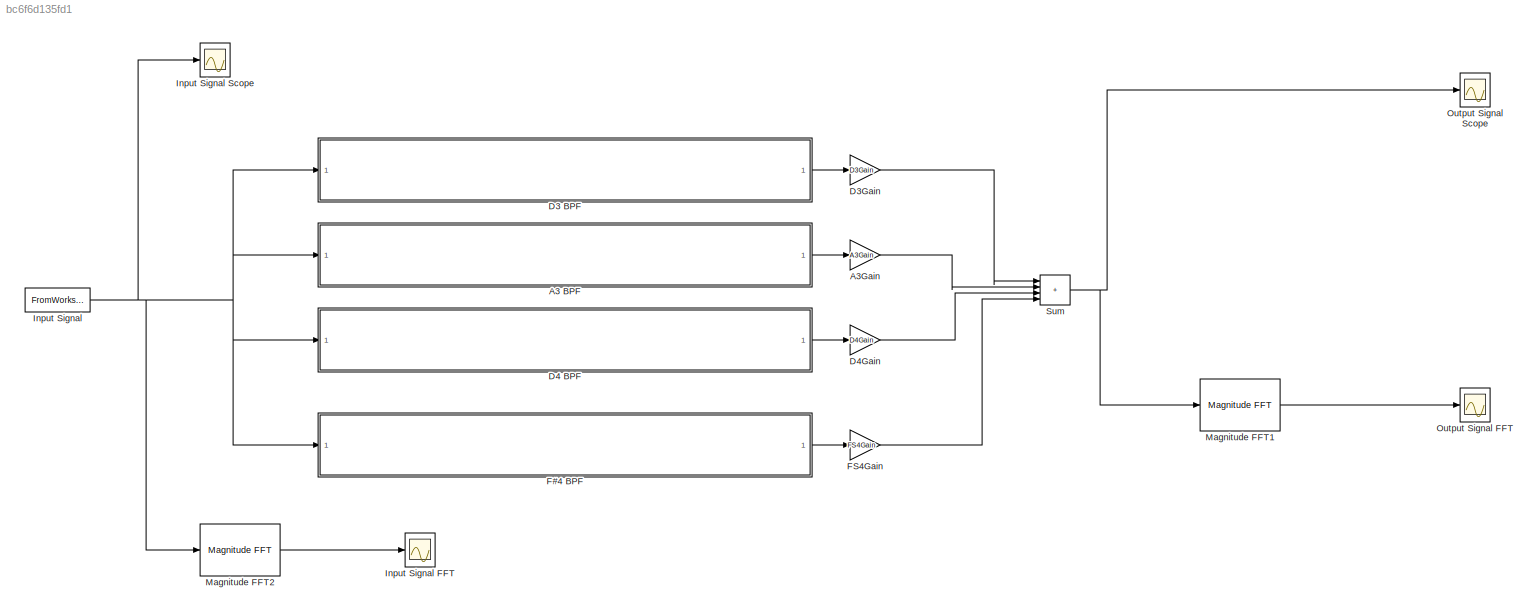
MODEL slx_bc6f6d135fd1
KIND model
CONFIG AbsTol = auto
CONFIG EnableMultiTasking = off
CONFIG FixedStep = auto
CONFIG MaxStep = auto
CONFIG MinStep = auto
CONFIG RelTol = 1e-3
CONFIG SampleTimeConstraint = Unconstrained
CONFIG SolverName = VariableStepAuto
CONFIG StartTime = 0.0
CONFIG StopTime = 10.0
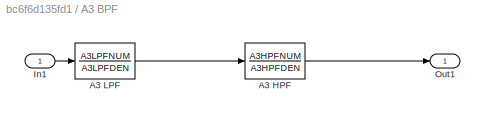
BLOCK [SubSystem] A3 BPF
  Ports = [1, 1]
  RequestExecContextInheritance = off
BLOCK [TransferFcn] A3 BPF/A3 HPF
  Denominator = A3HPFDEN
  Numerator = A3HPFNUM
BLOCK [TransferFcn] A3 BPF/A3 LPF
  Denominator = A3LPFDEN
  Numerator = A3LPFNUM
BLOCK [Inport] A3 BPF/In1
BLOCK [Outport] A3 BPF/Out1
BLOCK [Gain] A3Gain
  Gain = A3Gain
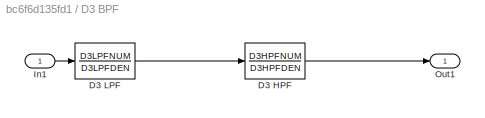
BLOCK [SubSystem] D3 BPF
  Ports = [1, 1]
  RequestExecContextInheritance = off
BLOCK [TransferFcn] D3 BPF/D3 HPF
  Denominator = D3HPFDEN
  Numerator = D3HPFNUM
BLOCK [TransferFcn] D3 BPF/D3 LPF
  Denominator = D3LPFDEN
  Numerator = D3LPFNUM
BLOCK [Inport] D3 BPF/In1
BLOCK [Outport] D3 BPF/Out1
BLOCK [Gain] D3Gain
  Gain = D3Gain
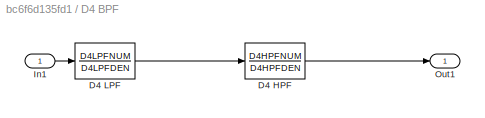
BLOCK [SubSystem] D4 BPF
  Ports = [1, 1]
  RequestExecContextInheritance = off
BLOCK [TransferFcn] D4 BPF/D4 HPF
  Denominator = D4HPFDEN
  Numerator = D4HPFNUM
BLOCK [TransferFcn] D4 BPF/D4 LPF
  Denominator = D4LPFDEN
  Numerator = D4LPFNUM
BLOCK [Inport] D4 BPF/In1
BLOCK [Outport] D4 BPF/Out1
BLOCK [Gain] D4Gain
  Gain = D4Gain
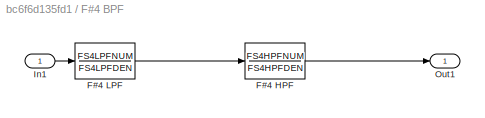
BLOCK [SubSystem] F#4 BPF
  Ports = [1, 1]
  RequestExecContextInheritance = off
BLOCK [TransferFcn] F#4 BPF/F#4 HPF
  Denominator = FS4HPFDEN
  Numerator = FS4HPFNUM
BLOCK [TransferFcn] F#4 BPF/F#4 LPF
  Denominator = FS4LPFDEN
  Numerator = FS4LPFNUM
BLOCK [Inport] F#4 BPF/In1
BLOCK [Outport] F#4 BPF/Out1
BLOCK [Gain] FS4Gain
  Gain = FS4Gain
BLOCK [FromWorkspace] Input Signal
  VariableName = simin
BLOCK [Scope] Input Signal FFT
  Floating = off
  NumInputPorts = 1
  Ports = [1]
  ScopeSpecificationString = Simulink.scopes.TimeScopeBlockCfg('CurrentConfiguration', extmgr.ConfigurationSet(extmgr.Configuration('Core','General UI',true),extmgr.Configuration('Core','Source UI',true),extmgr.Configuration('Sources','WiredSimulink',true),extmgr.Configuration('Visuals','Time Domain',true,'SerializedDisplays',{struct('MinYLimReal','-0.23388','MaxYLimReal','2.10494','YLabelReal','','MinYLimMag','0.00000','MaxY...<+1362ch>
BLOCK [Scope] Input Signal Scope
  Floating = off
  NumInputPorts = 1
  Ports = [1]
  ScopeSpecificationString = Simulink.scopes.TimeScopeBlockCfg('CurrentConfiguration', extmgr.ConfigurationSet(extmgr.Configuration('Core','General UI',true),extmgr.Configuration('Core','Source UI',true),extmgr.Configuration('Sources','WiredSimulink',true,'DataLoggingVariableName','ScopeData1'),extmgr.Configuration('Visuals','Time Domain',true,'SerializedDisplays',{struct('MinYLimReal','-3124353908471.52393','MaxYLimReal','31...<+1499ch>
BLOCK [Reference] Magnitude FFT1  REF=dspspect3/Magnitude
FFT
  Ports = [1, 1]
  SourceBlock = dspspect3/Magnitude\nFFT
  SourceProductBaseCode = DS
  SourceType = Magnitude FFT
BLOCK [Reference] Magnitude FFT2  REF=dspspect3/Magnitude
FFT
  Ports = [1, 1]
  SourceBlock = dspspect3/Magnitude\nFFT
  SourceProductBaseCode = DS
  SourceType = Magnitude FFT
BLOCK [Scope] Output Signal FFT
  Floating = off
  NumInputPorts = 1
  Ports = [1]
  ScopeSpecificationString = Simulink.scopes.TimeScopeBlockCfg('CurrentConfiguration', extmgr.ConfigurationSet(extmgr.Configuration('Core','General UI',true),extmgr.Configuration('Core','Source UI',true),extmgr.Configuration('Sources','WiredSimulink',true,'DataLoggingVariableName','ScopeData2'),extmgr.Configuration('Visuals','Time Domain',true,'SerializedDisplays',{struct('MinYLimReal','-315592742817.61145','MaxYLimReal','284...<+1491ch>
BLOCK [Scope] Output Signal Scope
  Floating = off
  NumInputPorts = 1
  Ports = [1]
  ScopeSpecificationString = Simulink.scopes.TimeScopeBlockCfg('CurrentConfiguration', extmgr.ConfigurationSet(extmgr.Configuration('Core','General UI',true),extmgr.Configuration('Core','Source UI',true),extmgr.Configuration('Sources','WiredSimulink',true,'DataLoggingVariableName','ScopeData1'),extmgr.Configuration('Visuals','Time Domain',true,'SerializedDisplays',{struct('MinYLimReal','-3124353908471.52393','MaxYLimReal','31...<+1499ch>
BLOCK [Sum] Sum
  IconShape = rectangular
  Inputs = |++++
  Ports = [4, 1]
LINE A3 BPF/A3 HPF:1 -> A3 BPF/Out1:1
LINE A3 BPF/A3 LPF:1 -> A3 BPF/A3 HPF:1
LINE A3 BPF/In1:1 -> A3 BPF/A3 LPF:1
LINE A3 BPF:1 -> A3Gain:1
LINE A3Gain:1 -> Sum:2
LINE D3 BPF/D3 HPF:1 -> D3 BPF/Out1:1
LINE D3 BPF/D3 LPF:1 -> D3 BPF/D3 HPF:1
LINE D3 BPF/In1:1 -> D3 BPF/D3 LPF:1
LINE D3 BPF:1 -> D3Gain:1
LINE D3Gain:1 -> Sum:1
LINE D4 BPF/D4 HPF:1 -> D4 BPF/Out1:1
LINE D4 BPF/D4 LPF:1 -> D4 BPF/D4 HPF:1
LINE D4 BPF/In1:1 -> D4 BPF/D4 LPF:1
LINE D4 BPF:1 -> D4Gain:1
LINE D4Gain:1 -> Sum:3
LINE F#4 BPF/F#4 HPF:1 -> F#4 BPF/Out1:1
LINE F#4 BPF/F#4 LPF:1 -> F#4 BPF/F#4 HPF:1
LINE F#4 BPF/In1:1 -> F#4 BPF/F#4 LPF:1
LINE F#4 BPF:1 -> FS4Gain:1
LINE FS4Gain:1 -> Sum:4
NET Input Signal:1 -> A3 BPF:1, D3 BPF:1, D4 BPF:1, F#4 BPF:1, Input Signal Scope:1, Magnitude FFT2:1
LINE Magnitude FFT1:1 -> Output Signal FFT:1
LINE Magnitude FFT2:1 -> Input Signal FFT:1
NET Sum:1 -> Magnitude FFT1:1, Output Signal Scope:1
note: NET lines group one-source signal fan-out (src -> all destinations, sorted); 1:1 wires keep LINE
